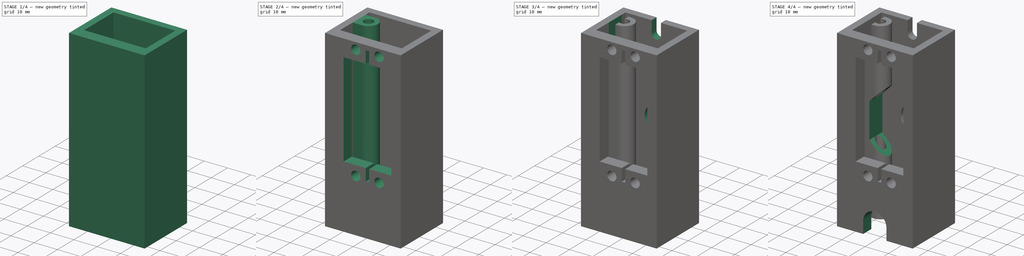
[diagram: build sequence overview — one tinted view per stage of 4, left to right]
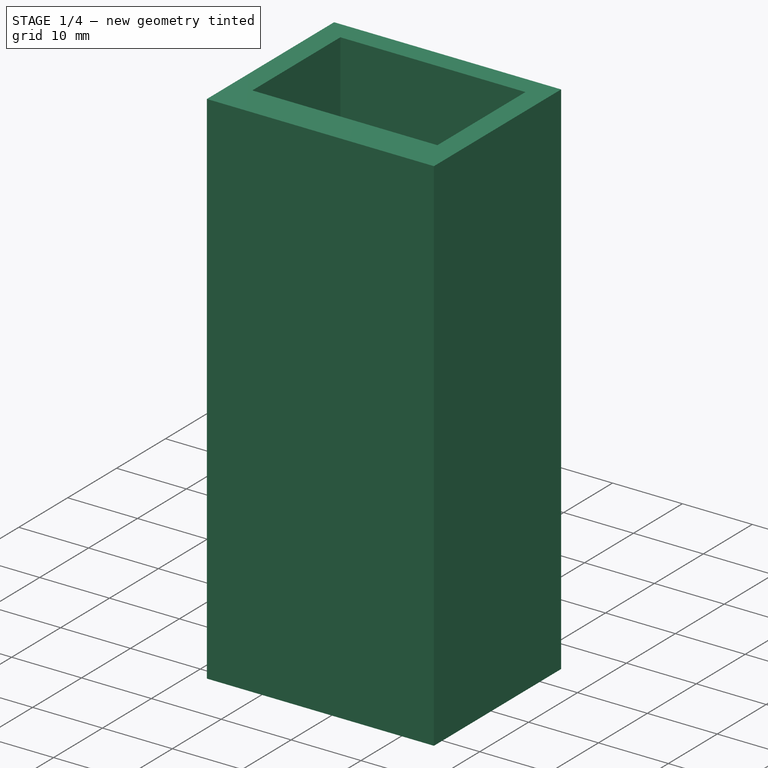
[diagram: stage 1 of 4 — iso view after this stage's code; geometry added in this stage tinted green]
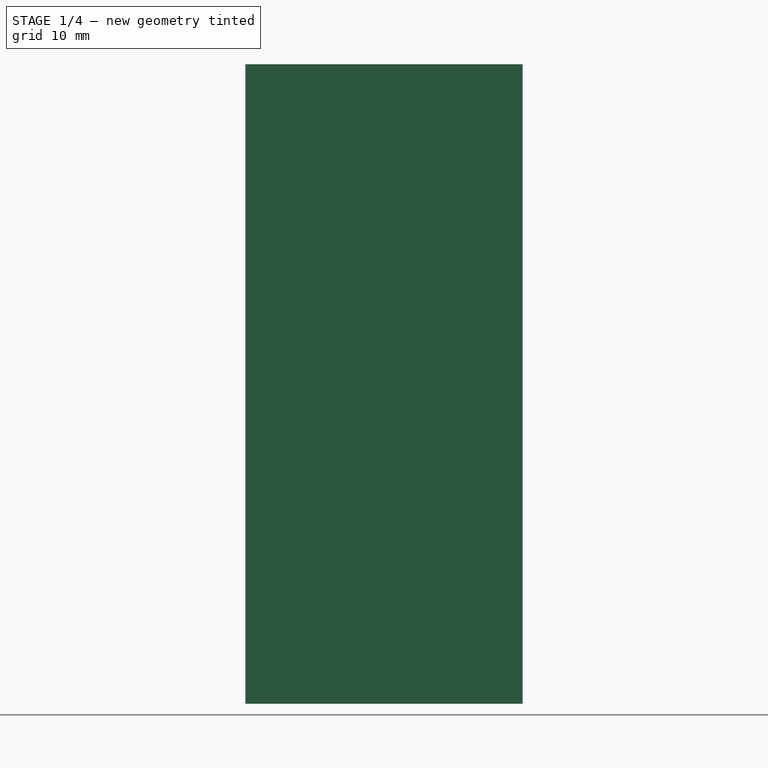
[diagram: stage 1 of 4 — front view after this stage's code; geometry added in this stage tinted green]
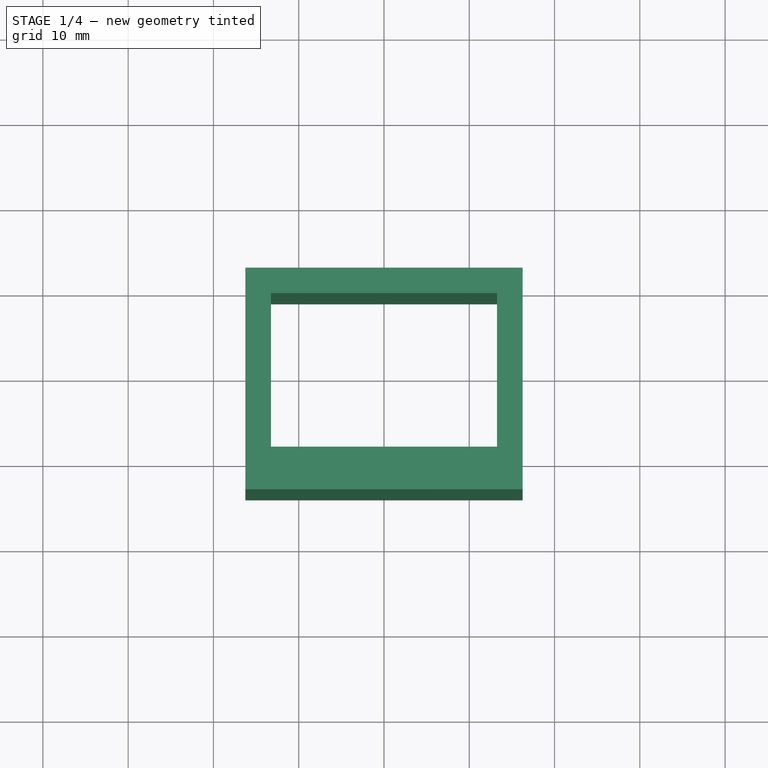
[diagram: stage 1 of 4 — top view after this stage's code; geometry added in this stage tinted green]
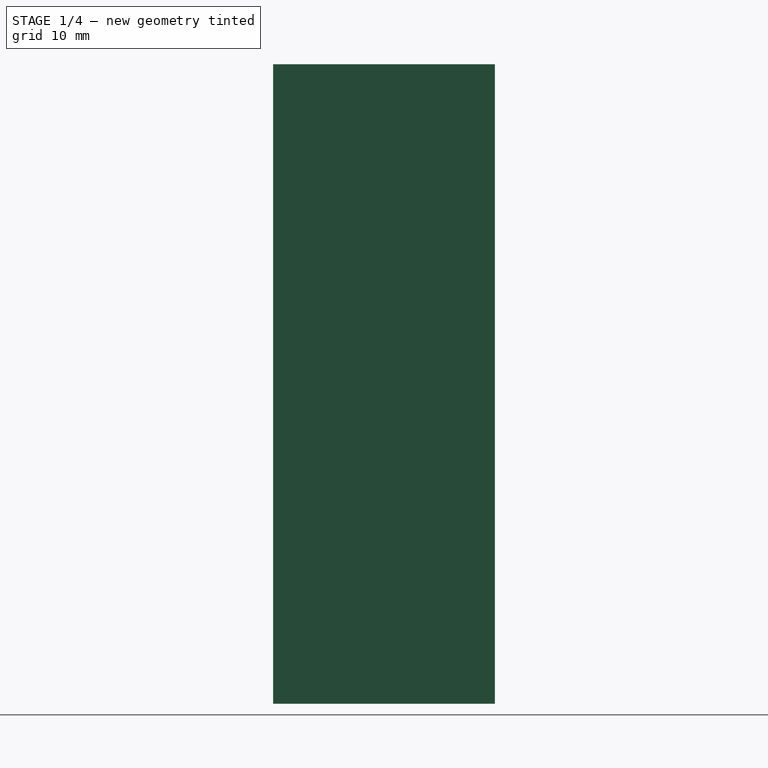
[diagram: stage 1 of 4 — right view after this stage's code; geometry added in this stage tinted green]
FCSTD DOCUMENT  (FreeCAD 1.1R20260414 (Git shallow))
Label: ValveBody
Comment: Source: ServoQuetsch https://gitlab.com/mikeventor1/ServoQuetsch (CERN-OHL-P-2.0). Multi-file bundle: parts driven by VarSet in V.FCStd.
License: CERN Open Hardware Licence Version 2 - Permissive
LicenseURL: https://ohwr.org/cernohl
objects: Sketcher::SketchObject×8, PartDesign::Pocket×6, PartDesign::Pad×2, App::Point×1, PartDesign::Mirrored×1, Part::DatumPlane×1, PartDesign::Body×1
note: 43 computed .brp shape members not serialized (recipe doc carries the construction recipe); baked Part::Feature solids carry a one-line shape summary decoded from their .brp
EXTERNAL_REF file=V.FCStd obj=VarSet

FEATURE [App::Point] Origin001  label="Ursprung"
  Role = Origin
FEATURE [Sketcher::SketchObject] Sketch
  ArcFitTolerance = 1e-06
  AttachmentSupport = -> [Origin]
  ExternalTypes = [0]
  FullyConstrained = true
  MakeInternals = false
  MapMode = 5
  _ExternalGeoVersion = 1
  expr: Constraints[17] = <<V>>#<<VarSet>>.WallW
  expr: Constraints[20] = <<V>>#<<VarSet>>.ValveW / 2
  expr: Constraints[21] = <<V>>#<<VarSet>>.SevoHeadH
  expr: Constraints[24] = <<V>>#<<VarSet>>.ValveD
  sketch-geometry (10):
    g0: LineSegment StartX=0 StartY=-9 StartZ=0 EndX=0 EndY=-14 EndZ=0
    g1: LineSegment StartX=0 StartY=-14 StartZ=0 EndX=-13.25 EndY=-14 EndZ=0
    g2: LineSegment StartX=-13.25 StartY=-14 StartZ=0 EndX=-16.25 EndY=-14 EndZ=0
    g3: LineSegment StartX=-16.25 StartY=-14 StartZ=0 EndX=-16.25 EndY=12 EndZ=0
    g4: LineSegment StartX=-16.25 StartY=12 StartZ=0 EndX=0 EndY=12 EndZ=0
    g5: LineSegment StartX=0 StartY=12 StartZ=0 EndX=0 EndY=9 EndZ=0
    g6: LineSegment StartX=0 StartY=9 StartZ=0 EndX=-13.25 EndY=9 EndZ=0
    g7: LineSegment StartX=-13.25 StartY=9 StartZ=0 EndX=-13.25 EndY=-9 EndZ=0
    g8: LineSegment StartX=-13.25 StartY=-9 StartZ=0 EndX=0 EndY=-9 EndZ=0
    g9: GeomPoint X=-13.25 Y=0 Z=0
  constraints (28):
    c: PointOnObject(g0,g-2)
    c: Coincident(g0,g1)
    c: Horizontal(g1)
    c: Horizontal(g2)
    c: Coincident(g2,g3)
    c: Vertical(g3)
    c: Coincident(g3,g4)
    c: PointOnObject(g4,g-2)
    c: Horizontal(g4)
    c: Coincident(g4,g5)
    c: PointOnObject(g5,g-2)
    c: Coincident(g5,g6)
    c: Horizontal(g6)
    c: Coincident(g6,g7)
    c: Vertical(g7)
    c: Coincident(g7,g8)
    c: Coincident(g8,g0)
    c: DistanceX(g2,g2) = 3
    c: Vertical(g7,g1)
    c: Equal(g2,g5)
    c: DistanceX(g4,g4) = 16.25
    c: Distance(g0,g0) = 5
    c: PointOnObject(g0,g-2)
    c: Horizontal(g8)
    c: DistanceY(g7,g7) = 18
    c: Symmetric(g7,g7,g9)
    c: PointOnObject(g9,g-1)
    c: Coincident(g1,g2)
FEATURE [PartDesign::Pad] Pad
  Direction = (0,0,1)
  Length = 75
  Length2 = 10
  Profile = -> Sketch
  ReferenceAxis = -> Sketch [N_Axis]
  SideType = 0
  Suppressed = false
  Type = 0
  Type2 = 0
  expr: Length = <<V>>#<<VarSet>>.ServoH + <<V>>#<<VarSet>>.ValveHOffset
FEATURE [PartDesign::Mirrored] Mirrored
  BaseFeature = -> Pad
  MirrorPlane = -> Sketch [V_Axis]
  Originals = -> [Pad]
  Suppressed = false
  TransformMode = 0
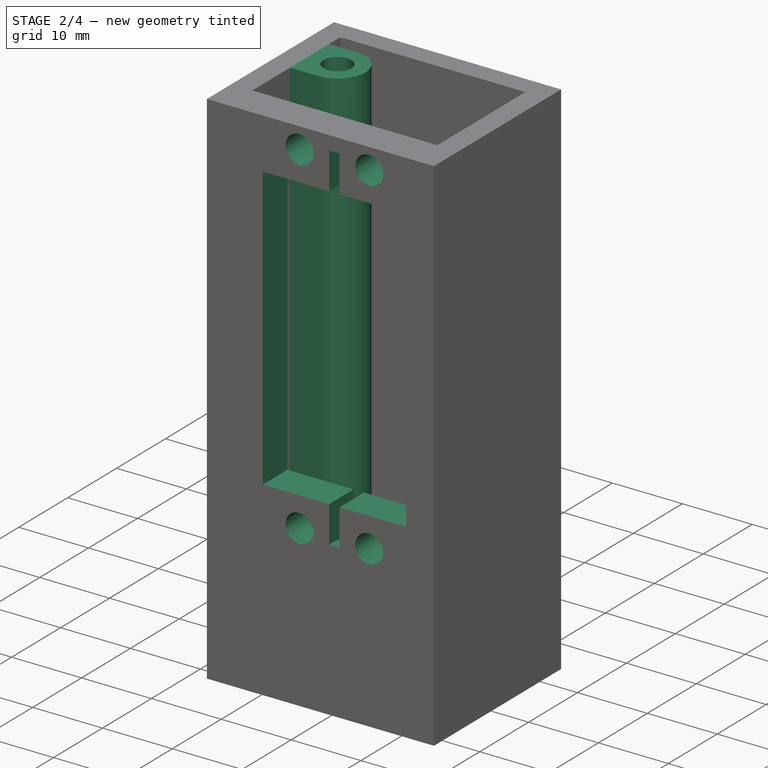
[diagram: stage 2 of 4 — iso view after this stage's code; geometry added in this stage tinted green]
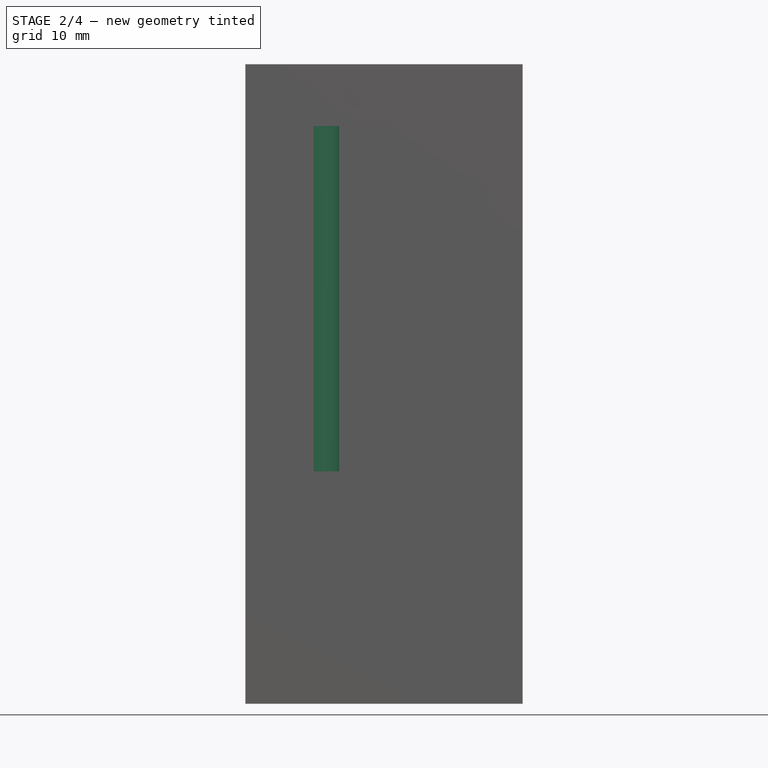
[diagram: stage 2 of 4 — front view after this stage's code; geometry added in this stage tinted green]
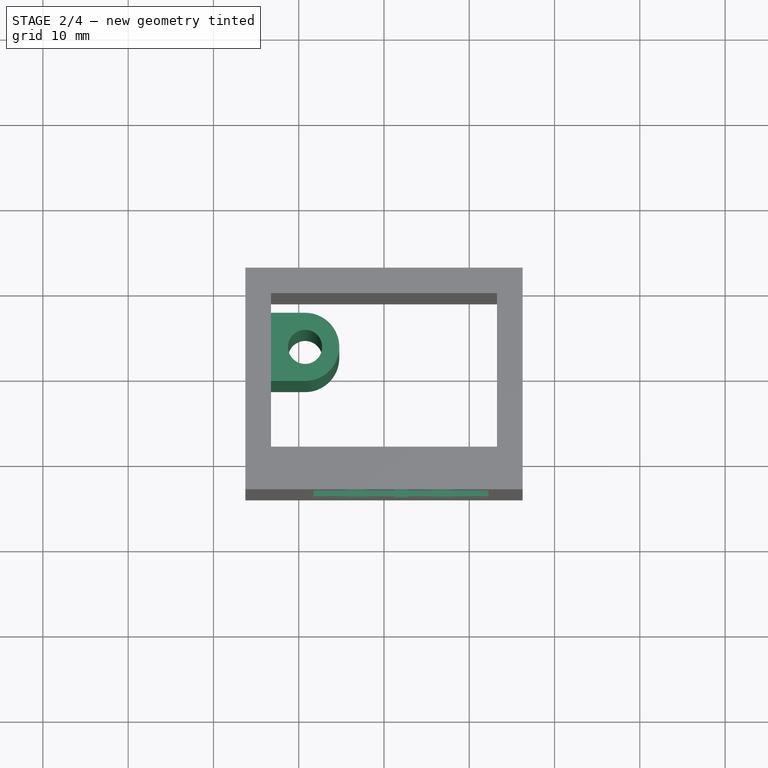
[diagram: stage 2 of 4 — top view after this stage's code; geometry added in this stage tinted green]
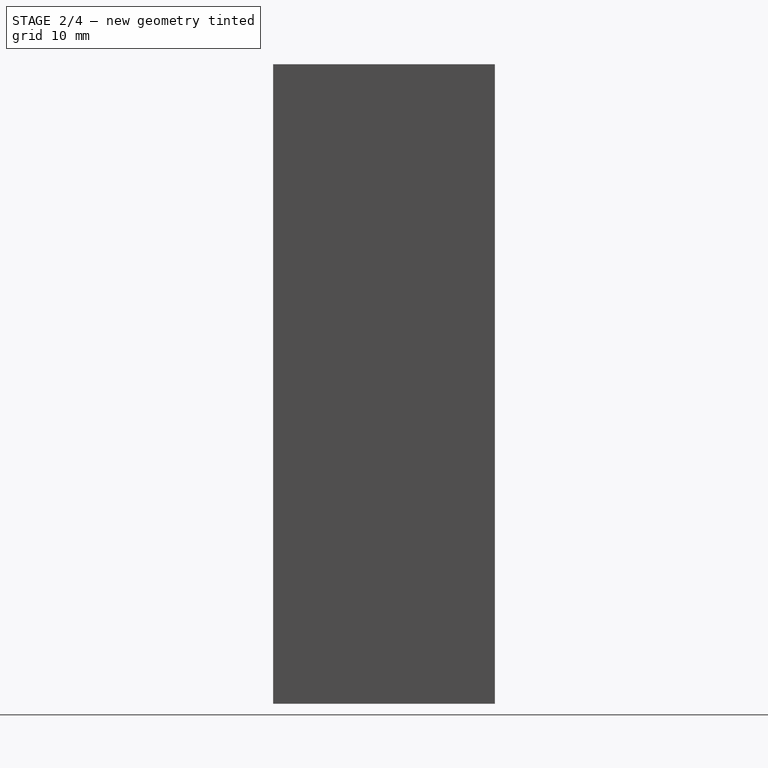
[diagram: stage 2 of 4 — right view after this stage's code; geometry added in this stage tinted green]
FEATURE [Sketcher::SketchObject] Sketch001  label="Tubehousing"
  ArcFitTolerance = 1e-06
  AttachmentSupport = -> [Origin]
  ExternalGeometry = -> [Mirrored]
  ExternalTypes = [0]
  FullyConstrained = true
  MakeInternals = false
  MapMode = 5
  _ExternalGeoVersion = 1
  expr: Constraints[0] = <<V>>#<<VarSet>>.TubeOD + <<V>>#<<VarSet>>.TubeClearance
  expr: Constraints[11] = <<V>>#<<VarSet>>.TubeToWall
  expr: Constraints[12] = <<V>>#<<VarSet>>.TubeZDist
  expr: Constraints[6] = <<V>>#<<VarSet>>.TubholderT
  sketch-geometry (5):
    g0: Circle CenterX=-9.25 CenterY=2.7 CenterZ=0 NormalX=0 NormalY=0 NormalZ=1 AngleXU=0 Radius=2
    g1: LineSegment StartX=-13.25 StartY=6.7 StartZ=0 EndX=-9.25 EndY=6.7 EndZ=0
    g2: LineSegment StartX=-13.25 StartY=-1.3 StartZ=0 EndX=-9.25 EndY=-1.3 EndZ=0
    g3: ArcOfCircle CenterX=-9.25 CenterY=2.7 CenterZ=0 NormalX=0 NormalY=0 NormalZ=1 AngleXU=0 Radius=4 StartAngle=4.71239 EndAngle=7.85398
    g4: LineSegment StartX=-13.25 StartY=6.7 StartZ=0 EndX=-13.25 EndY=-1.3 EndZ=0
  constraints (13):
    c: Diameter(g0) = 4
    c: Horizontal(g1)
    c: Coincident(g3,g0)
    c: Horizontal(g2)
    c: Tangent(g3,g1) = 1.5708
    c: Tangent(g3,g2) = -1.5708
    c: Distance(g0,g3) = 2
    c: Coincident(g4,g1)
    c: Coincident(g4,g2)
    c: Vertical(g4)
    c: PointOnObject(g1,g-3)
    c: Distance(g0,g-3) = 2
    c: DistanceY(g-3,g0) = 11.7
FEATURE [Sketcher::SketchObject] Sketch004  label="ServoCutout"
  ArcFitTolerance = 1e-06
  AttachmentOffset = pos=(2,0,0) rot=(0,0,1;0rad)
  AttachmentSupport = -> [Origin]
  ExternalGeometry = -> [Mirrored]
  ExternalTypes = [0,0]
  FullyConstrained = true
  MakeInternals = false
  MapMode = 5
  Placement = pos=(2,0,0) rot=(1,0,0;1.5708rad)
  _ExternalGeoVersion = 1
  expr: .AttachmentOffset.Base.x = <<V>>#<<VarSet>>.TubeToWall
  expr: Constraints[6] = <<V>>#<<VarSet>>.ServoW + <<V>>#<<VarSet>>.ServoClearance
  expr: Constraints[7] = <<V>>#<<VarSet>>.ServoInnerH + <<V>>#<<VarSet>>.ServoClearance
  sketch-geometry (22):
    g0: LineSegment StartX=-10.25 StartY=67.75 StartZ=0 EndX=-10.25 EndY=27.25 EndZ=0
    g1: LineSegment StartX=-10.25 StartY=27.25 StartZ=0 EndX=-0.75 EndY=27.25 EndZ=0
    g2: LineSegment StartX=10.25 StartY=27.25 StartZ=0 EndX=10.25 EndY=67.75 EndZ=0
    g3: LineSegment StartX=10.25 StartY=67.75 StartZ=0 EndX=0.75 EndY=67.75 EndZ=0
    g4: LineSegment StartX=-0.75 StartY=22 StartZ=0 EndX=0.75 EndY=22 EndZ=0
    g5: LineSegment StartX=0.75 StartY=22 StartZ=0 EndX=0.75 EndY=27.25 EndZ=0
    g6: LineSegment StartX=0.75 StartY=73 StartZ=0 EndX=-0.75 EndY=73 EndZ=0
    g7: LineSegment StartX=-0.75 StartY=73 StartZ=0 EndX=-0.75 EndY=67.75 EndZ=0
    g8: LineSegment StartX=0.75 StartY=67.75 StartZ=0 EndX=0.75 EndY=73 EndZ=0
    g9: LineSegment StartX=-0.75 StartY=27.25 StartZ=0 EndX=-0.75 EndY=22 EndZ=0
    g10: LineSegment StartX=-0.75 StartY=67.75 StartZ=0 EndX=-10.25 EndY=67.75 EndZ=0
    g11: LineSegment StartX=0.75 StartY=27.25 StartZ=0 EndX=10.25 EndY=27.25 EndZ=0
    g12: Circle CenterX=-5 CenterY=72 CenterZ=0 NormalX=0 NormalY=0 NormalZ=1 AngleXU=0 Radius=2
    g13: Circle CenterX=5 CenterY=72 CenterZ=0 NormalX=0 NormalY=0 NormalZ=1 AngleXU=0 Radius=2
    g14: Circle CenterX=-5 CenterY=23 CenterZ=0 NormalX=0 NormalY=0 NormalZ=1 AngleXU=0 Radius=2
    g15: Circle CenterX=5 CenterY=23 CenterZ=0 NormalX=0 NormalY=0 NormalZ=1 AngleXU=0 Radius=2
    g16: GeomPoint X=5 Y=70 Z=0
    g17: LineSegment [constr] StartX=-5 StartY=72 StartZ=0 EndX=0 EndY=72 EndZ=0
    g18: LineSegment [constr] StartX=0 StartY=72 StartZ=0 EndX=5 EndY=72 EndZ=0
    g19: GeomPoint X=0 Y=47.5 Z=0
    g20: LineSegment [constr] StartX=-5 StartY=72 StartZ=0 EndX=-5 EndY=67.75 EndZ=0
    g21: LineSegment [constr] StartX=-5 StartY=23 StartZ=0 EndX=-5 EndY=27.25 EndZ=0
  constraints (61):
    c: Coincident(g0,g1)
    c: Coincident(g11,g2)
    c: Coincident(g2,g3)
    c: Coincident(g10,g0)
    c: Vertical(g0)
    c: Vertical(g2)
    c: DistanceX(g10,g3) = 20.5
    c: DistanceY(g2,g2) = 40.5
    c: Coincident(g4,g5)
    c: Coincident(g8,g6)
    c: Coincident(g6,g7)
    c: Coincident(g9,g4)
    c: Horizontal(g4)
    c: DistanceY(g8,g-4) = 2
    c: DistanceX(g6,g6) = 1.5
    c: Vertical(g5)
    c: Vertical(g8)
    c: Vertical(g7)
    c: Vertical(g9)
    c: Horizontal(g3)
    c: Horizontal(g10)
    c: Coincident(g8,g3)
    c: Coincident(g7,g10)
    c: Horizontal(g1)
    c: Horizontal(g11)
    c: Coincident(g5,g11)
    c: Coincident(g9,g1)
    c: Horizontal(g7,g3)
    c: Horizontal(g1,g5)
    c: Vertical(g5,g3)
    c: Vertical(g1,g7)
    c: DistanceX(g12,g13) = 10
    c: Diameter(g13) = 4
    c: PointOnObject(g16,g13)
    c: Vertical(g16,g13)
    c: Equal(g13,g12)
    c: Equal(g12,g14)
    c: Equal(g14,g15)
    c: Coincident(g17,g12)
    c: Horizontal(g17)
    c: Coincident(g18,g17)
    c: Coincident(g18,g13)
    c: Equal(g18,g17)
    c: Horizontal(g18)
    c: PointOnObject(g17,g-2)
    c: Horizontal(g14,g15)
    c: Vertical(g14,g12)
    c: Vertical(g13,g15)
    c: PointOnObject(g19,g-2)
    c: DistanceY(g7,g7) = 5.25
    c: Equal(g7,g9)
    c: Coincident(g20,g12)
    c: PointOnObject(g20,g10)
    c: Vertical(g20)
    c: DistanceY(g20,g20) = 4.25
    c: Coincident(g21,g14)
    c: PointOnObject(g21,g1)
    c: Perpendicular(g1,g21)
    c: Equal(g21,g20)
    c: Symmetric(g0,g2,g19)
    c: Symmetric(g6,g6,g-2)
FEATURE [PartDesign::Pocket] Pocket002
  BaseFeature = -> Mirrored
  Direction = (0,1,-2e-16)
  Length = 5
  Length2 = 5
  Profile = -> Sketch004
  ReferenceAxis = -> Sketch004 [N_Axis]
  Reversed = true
  SideType = 0
  Suppressed = false
  Type = 1
  Type2 = 0
FEATURE [PartDesign::Pad] Pad001
  BaseFeature = -> Pocket002
  Direction = (0,0,1)
  Length = 10
  Length2 = 10
  Profile = -> Sketch001
  ReferenceAxis = -> Sketch001 [N_Axis]
  SideType = 0
  Suppressed = false
  Type = 3
  Type2 = 0
  UpToFace = -> Mirrored [Face5]
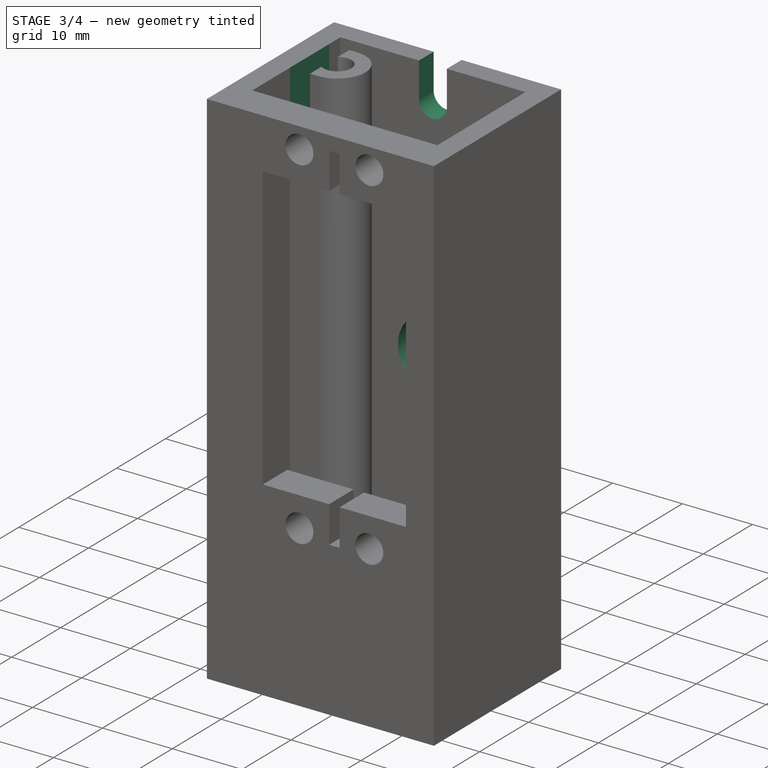
[diagram: stage 3 of 4 — iso view after this stage's code; geometry added in this stage tinted green]
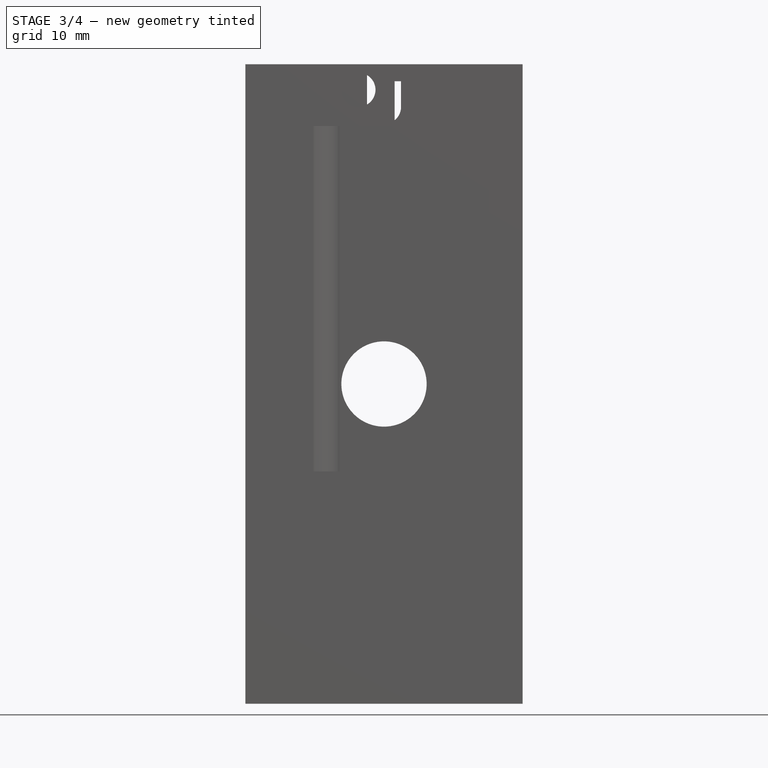
[diagram: stage 3 of 4 — front view after this stage's code; geometry added in this stage tinted green]
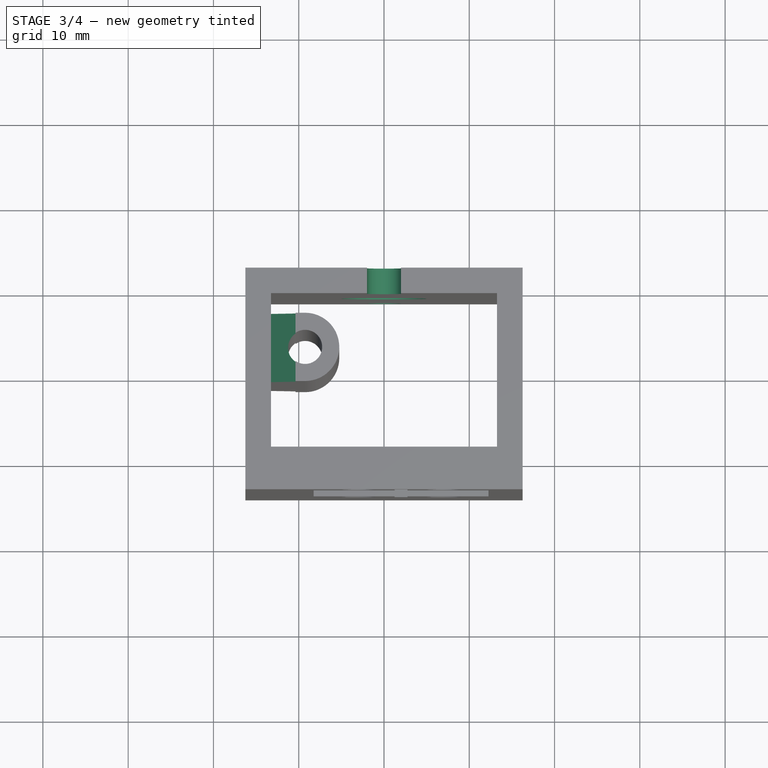
[diagram: stage 3 of 4 — top view after this stage's code; geometry added in this stage tinted green]
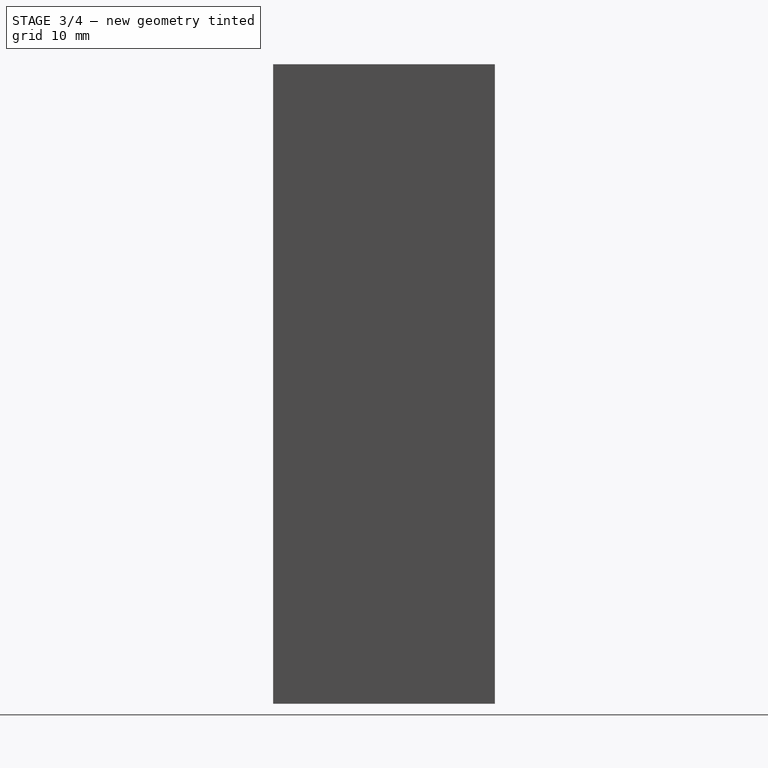
[diagram: stage 3 of 4 — right view after this stage's code; geometry added in this stage tinted green]
FEATURE [Part::DatumPlane] DatumPlane
  AttachmentOffset = pos=(0,0,0) rot=(0,-1,0;1.5708rad)
  AttachmentSupport = -> [Pad001]
  MapMode = 11
  Placement = pos=(-9.25,2.7,75) rot=(0.57735,-0.57735,-0.57735;4.18879rad)
FEATURE [Sketcher::SketchObject] Sketch002
  ArcFitTolerance = 1e-06
  AttachmentSupport = -> [DatumPlane]
  ExternalGeometry = -> [Pad001]
  ExternalTypes = [0,0,0]
  FullyConstrained = true
  MakeInternals = false
  MapMode = 5
  Placement = pos=(-9.25,2.7,75) rot=(0.57735,-0.57735,-0.57735;4.18879rad)
  _ExternalGeoVersion = 1
  expr: Constraints[5] = <<V>>#<<VarSet>>.CutoutH
  sketch-geometry (6):
    g0: LineSegment [constr] StartX=0 StartY=2 StartZ=0 EndX=75 EndY=2 EndZ=0
    g1: GeomPoint [constr] X=37.5 Y=2 Z=0
    g2: LineSegment StartX=30 StartY=2 StartZ=0 EndX=45 EndY=2 EndZ=0
    g3: LineSegment StartX=30 StartY=2 StartZ=0 EndX=24 EndY=-4 EndZ=0
    g4: LineSegment StartX=24 StartY=-4 StartZ=0 EndX=51 EndY=-4 EndZ=0
    g5: LineSegment StartX=51 StartY=-4 StartZ=0 EndX=45 EndY=2 EndZ=0
  constraints (14):
    c: Coincident(g0,g-3)
    c: Coincident(g0,g-4)
    c: Symmetric(g0,g0,g1)
    c: Horizontal(g2)
    c: Symmetric(g2,g2,g1)
    c: DistanceX(g2,g2) = 15
    c: Coincident(g2,g3)
    c: Coincident(g3,g4)
    c: Horizontal(g4)
    c: Coincident(g4,g5)
    c: Coincident(g5,g2)
    c: Angle(g0,g3) = 0.785398
    c: Angle(g5,g0) = 0.785398
    c: Horizontal(g3,g-5)
FEATURE [Sketcher::SketchObject] Sketch003  label="TubeZipTieCut"
  ArcFitTolerance = 1e-06
  AttachmentSupport = -> [DatumPlane]
  ExternalGeometry = -> [Pad001]
  ExternalTypes = [0]
  FullyConstrained = true
  MakeInternals = false
  MapMode = 5
  Placement = pos=(-9.25,2.7,75) rot=(0.57735,-0.57735,-0.57735;4.18879rad)
  _ExternalGeoVersion = 1
  expr: Constraints[10] = <<V>>#<<VarSet>>.TubeCutW
  sketch-geometry (8):
    g0: LineSegment StartX=0 StartY=1.125 StartZ=0 EndX=5 EndY=1.125 EndZ=0
    g1: LineSegment StartX=5 StartY=1.125 StartZ=0 EndX=7.875 EndY=4 EndZ=0
    g2: LineSegment StartX=7.875 StartY=4 StartZ=0 EndX=0 EndY=4 EndZ=0
    g3: LineSegment StartX=0 StartY=4 StartZ=0 EndX=0 EndY=1.125 EndZ=0
    g4: LineSegment StartX=75 StartY=4 StartZ=0 EndX=67.125 EndY=4 EndZ=0
    g5: LineSegment StartX=67.125 StartY=4 StartZ=0 EndX=70 EndY=1.125 EndZ=0
    g6: LineSegment StartX=70 StartY=1.125 StartZ=0 EndX=75 EndY=1.125 EndZ=0
    g7: LineSegment StartX=75 StartY=1.125 StartZ=0 EndX=75 EndY=4 EndZ=0
  constraints (23):
    c: PointOnObject(g0,g-2)
    c: Horizontal(g0)
    c: Coincident(g0,g1)
    c: Coincident(g1,g2)
    c: PointOnObject(g2,g-2)
    c: Horizontal(g2)
    c: Coincident(g2,g3)
    c: Coincident(g3,g0)
    c: Angle(g2,g1) = 0.785398
    c: DistanceX(g0,g0) = 5
    c: DistanceY(g0,g-3) = 0.5
    c: Coincident(g4,g5)
    c: Coincident(g5,g6)
    c: Horizontal(g6)
    c: Coincident(g6,g7)
    c: Coincident(g7,g4)
    c: Vertical(g7)
    c: Equal(g0,g6)
    c: Angle(g5,g4) = 0.785398
    c: Horizontal(g5,g0)
    c: PointOnObject(g1,g-4)
    c: PointOnObject(g4,g-4)
    c: Coincident(g4,g-4)
FEATURE [PartDesign::Pocket] Pocket001
  BaseFeature = -> Pad001
  Direction = (0,-1,0)
  Length = 5
  Length2 = 5
  Profile = -> Sketch003
  ReferenceAxis = -> Sketch003 [N_Axis]
  SideType = 1
  Suppressed = false
  Type = 0
  Type2 = 0
  expr: Length = <<V>>#<<VarSet>>.TubeOD + <<V>>#<<VarSet>>.TubholderT
  expr: Length2 = <<V>>#<<VarSet>>.TubeOD + <<V>>#<<VarSet>>.TubholderT
FEATURE [Sketcher::SketchObject] Sketch006  label="ConnectingHoles"
  ArcFitTolerance = 1e-06
  AttachmentSupport = -> [Origin]
  ExternalGeometry = -> [Pocket001]
  ExternalTypes = [0]
  FullyConstrained = false
  MakeInternals = false
  MapMode = 5
  Placement = pos=(0,0,0) rot=(1,0,0;1.5708rad)
  _ExternalGeoVersion = 1
  sketch-geometry (7):
    g0: Circle [constr] CenterX=0 CenterY=70 CenterZ=0 NormalX=0 NormalY=0 NormalZ=1 AngleXU=0 Radius=2
    g1: LineSegment [constr] StartX=0 StartY=75 StartZ=0 EndX=0 EndY=70 EndZ=0
    g2: Circle CenterX=0 CenterY=5 CenterZ=0 NormalX=0 NormalY=0 NormalZ=1 AngleXU=0 Radius=2
    g3: ArcOfCircle CenterX=0 CenterY=70 CenterZ=0 NormalX=0 NormalY=0 NormalZ=1 AngleXU=0 Radius=2 StartAngle=3.14159 EndAngle=6.28319
    g4: LineSegment StartX=-2 StartY=70 StartZ=0 EndX=-2 EndY=75 EndZ=0
    g5: LineSegment StartX=-2 StartY=75 StartZ=0 EndX=2 EndY=75 EndZ=0
    g6: LineSegment StartX=2 StartY=75 StartZ=0 EndX=2 EndY=70 EndZ=0
  constraints (19):
    c: PointOnObject(g0,g-2)
    c: Diameter(g0) = 4
    c: DistanceY(g0,g-3) = 5
    c: Coincident(g1,g-3)
    c: Coincident(g1,g0)
    c: Equal(g2,g0)
    c: Coincident(g3,g0)
    c: PointOnObject(g3,g0)
    c: Horizontal(g3,g0)
    c: Horizontal(g0,g3)
    c: Tangent(g3,g4) = 1.5708
    c: Coincident(g4,g5)
    c: Horizontal(g5)
    c: Coincident(g5,g6)
    c: Coincident(g6,g3)
    c: Vertical(g6)
    c: PointOnObject(g5,g-3)
    c: DistanceY(g-1,g2) = 5
    c: DistanceY(g2,g0) = 65
FEATURE [PartDesign::Pocket] Pocket003
  BaseFeature = -> Pocket001
  Direction = (0,1,-2e-16)
  Length = 5
  Length2 = 5
  Profile = -> Sketch006
  ReferenceAxis = -> Sketch006 [N_Axis]
  SideType = 0
  Suppressed = false
  Type = 1
  Type2 = 0
FEATURE [Sketcher::SketchObject] Sketch007  label="MaintainanceHole"
  ArcFitTolerance = 1e-06
  AttachmentSupport = -> [Origin]
  ExternalGeometry = -> [Pocket003]
  ExternalTypes = [0]
  FullyConstrained = true
  MakeInternals = false
  MapMode = 5
  Placement = pos=(0,0,0) rot=(1,0,0;1.5708rad)
  _ExternalGeoVersion = 1
  sketch-geometry (2):
    g0: GeomPoint X=16.25 Y=37.5 Z=0
    g1: Circle CenterX=0 CenterY=37.5 CenterZ=0 NormalX=0 NormalY=0 NormalZ=1 AngleXU=0 Radius=5
  constraints (4):
    c: Symmetric(g-3,g-3,g0)
    c: PointOnObject(g1,g-2)
    c: Diameter(g1) = 10
    c: Horizontal(g1,g0)
FEATURE [PartDesign::Pocket] Pocket004
  BaseFeature = -> Pocket003
  Direction = (0,1,-2e-16)
  Length = 5
  Length2 = 5
  Profile = -> Sketch007
  ReferenceAxis = -> Sketch007 [N_Axis]
  SideType = 0
  Suppressed = false
  Type = 1
  Type2 = 0
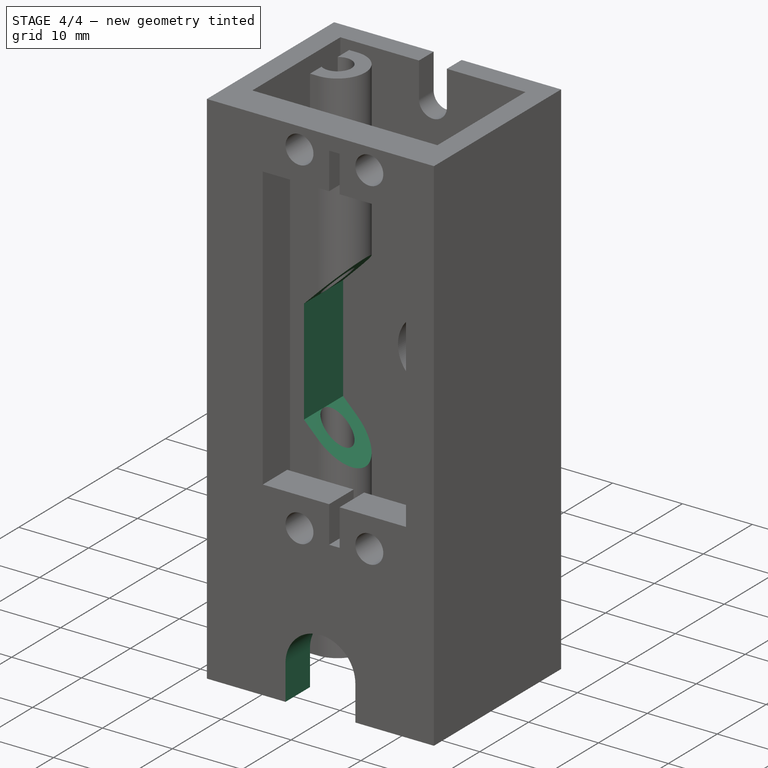
[diagram: stage 4 of 4 — iso view after this stage's code; geometry added in this stage tinted green]
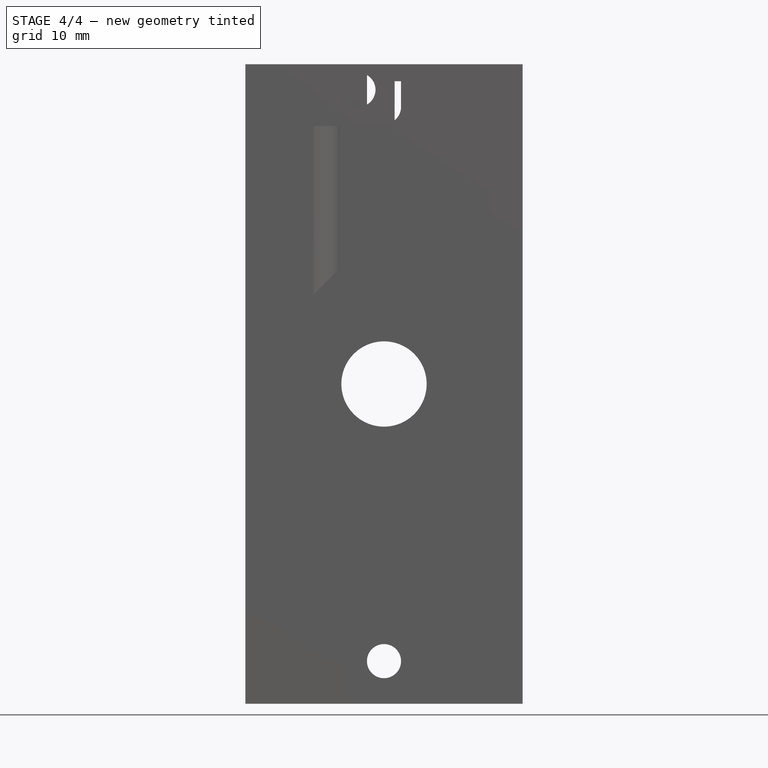
[diagram: stage 4 of 4 — front view after this stage's code; geometry added in this stage tinted green]
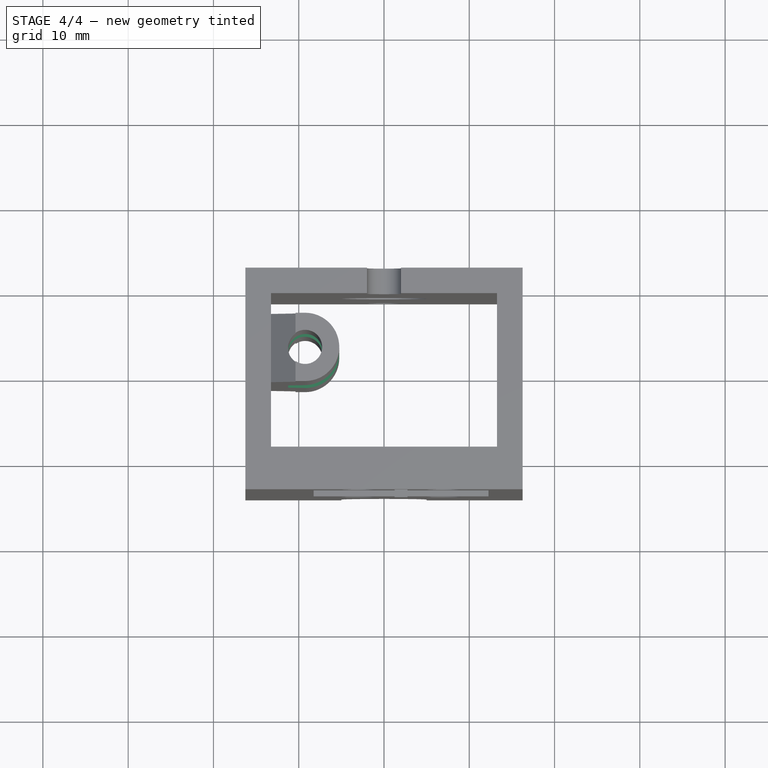
[diagram: stage 4 of 4 — top view after this stage's code; geometry added in this stage tinted green]
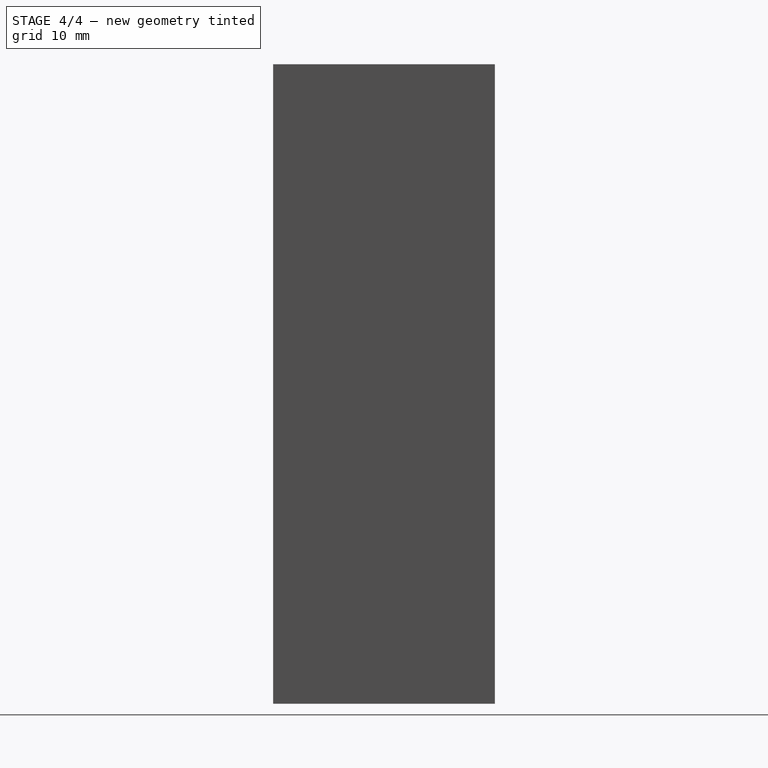
[diagram: stage 4 of 4 — right view after this stage's code; geometry added in this stage tinted green]
FEATURE [PartDesign::Pocket] Pocket
  BaseFeature = -> Pocket004
  Direction = (0,-1,0)
  Length = 5
  Length2 = 5
  Profile = -> Sketch002
  ReferenceAxis = -> Sketch002 [N_Axis]
  SideType = 1
  Suppressed = false
  Type = 3
  Type2 = 3
  UpToFace = -> Pocket004 [Face48]
  UpToFace2 = -> Pocket004 [Face46]
FEATURE [Sketcher::SketchObject] Sketch008  label="ConnectorScrewHole"
  ArcFitTolerance = 1e-06
  AttachmentSupport = -> [Origin]
  ExternalGeometry = -> [Pocket]
  ExternalTypes = [0]
  FullyConstrained = true
  MakeInternals = false
  MapMode = 5
  Placement = pos=(0,0,0) rot=(1,0,0;1.5708rad)
  _ExternalGeoVersion = 1
  sketch-geometry (5):
    g0: Circle [constr] CenterX=0 CenterY=5 CenterZ=0 NormalX=0 NormalY=0 NormalZ=1 AngleXU=0 Radius=5
    g1: ArcOfCircle CenterX=0 CenterY=5 CenterZ=0 NormalX=0 NormalY=0 NormalZ=1 AngleXU=0 Radius=5 StartAngle=1e-16 EndAngle=3.14159
    g2: LineSegment StartX=-5 StartY=5 StartZ=0 EndX=-5 EndY=0 EndZ=0
    g3: LineSegment StartX=-5 StartY=0 StartZ=0 EndX=5 EndY=0 EndZ=0
    g4: LineSegment StartX=5 StartY=0 StartZ=0 EndX=5 EndY=5 EndZ=0
  constraints (13):
    c: Coincident(g0,g-3)
    c: Diameter(g0) = 10
    c: Coincident(g1,g0)
    c: PointOnObject(g1,g0)
    c: Tangent(g1,g2) = -1.5708
    c: Coincident(g2,g3)
    c: Horizontal(g3)
    c: Tangent(g3,g0)
    c: Coincident(g3,g4)
    c: Coincident(g4,g1)
    c: Vertical(g4)
    c: Horizontal(g1,g0)
    c: Horizontal(g0,g1)
FEATURE [PartDesign::Pocket] Pocket005
  BaseFeature = -> Pocket
  Direction = (0,1,-2e-16)
  Length = 5
  Length2 = 5
  Profile = -> Sketch008
  ReferenceAxis = -> Sketch008 [N_Axis]
  Reversed = true
  SideType = 0
  Suppressed = false
  Type = 1
  Type2 = 0
FEATURE [PartDesign::Body] Body  label="ValveBody"
  AllowCompound = false
  Group = -> [Sketch,Pad,Mirrored,Pocket002,Sketch001,Pad001,DatumPlane,Sketch002,Sketch003,Pocket001,Sketch004,Sketch006,Pocket003,Sketch007,Pocket004,Pocket,Sketch008,Pocket005]
  Origin = -> Origin
  Tip = -> Pocket005
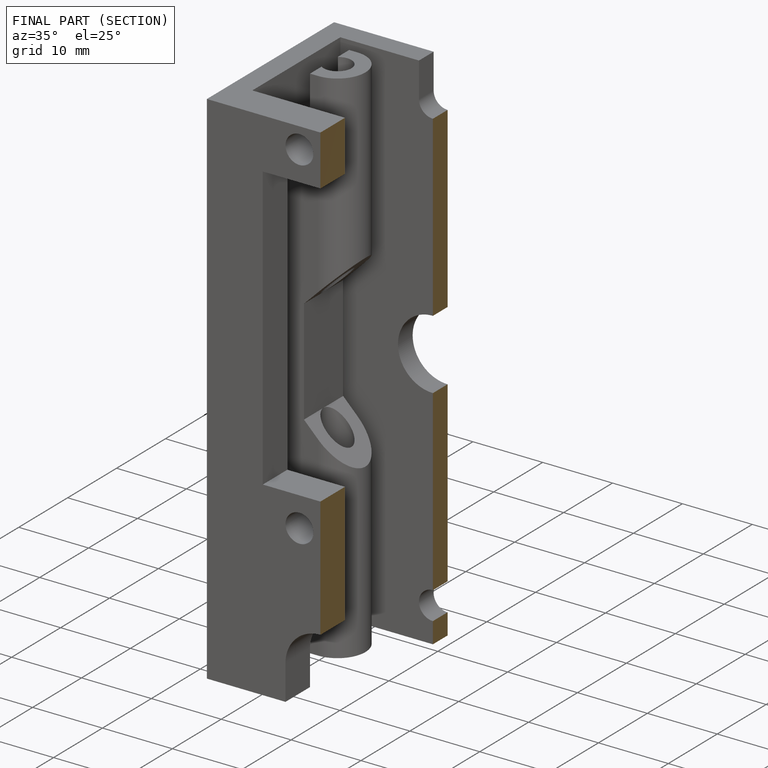
[diagram: finished part — half-section view (interior)]
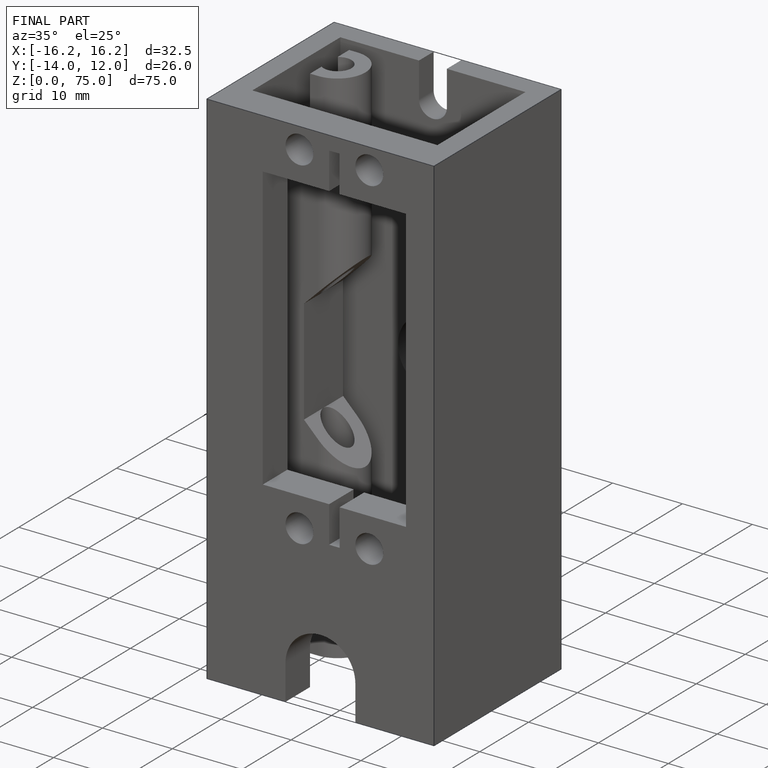
[diagram: finished part — iso view with bounding-box wireframe]
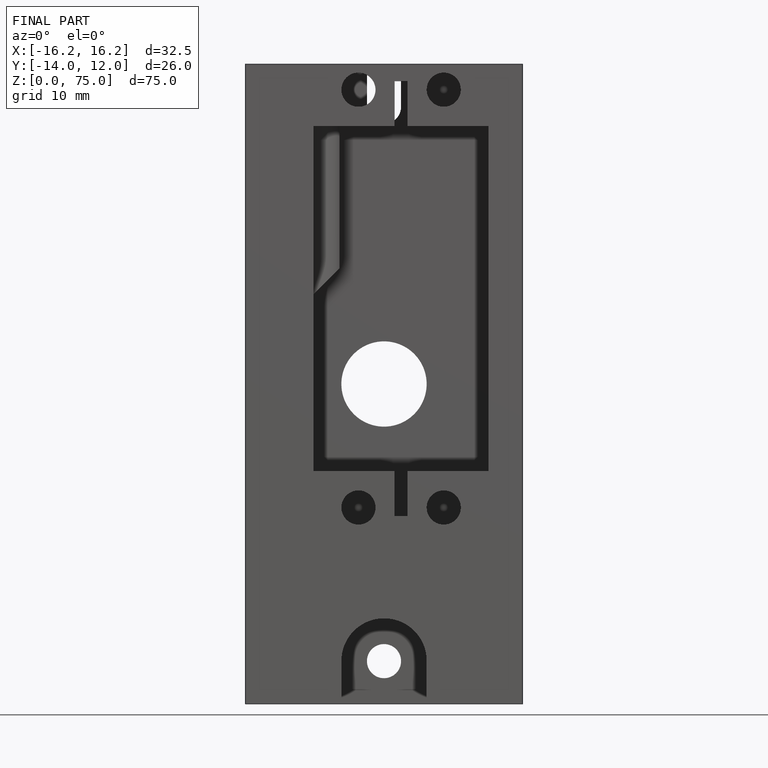
[diagram: finished part — front view with bounding-box wireframe]
